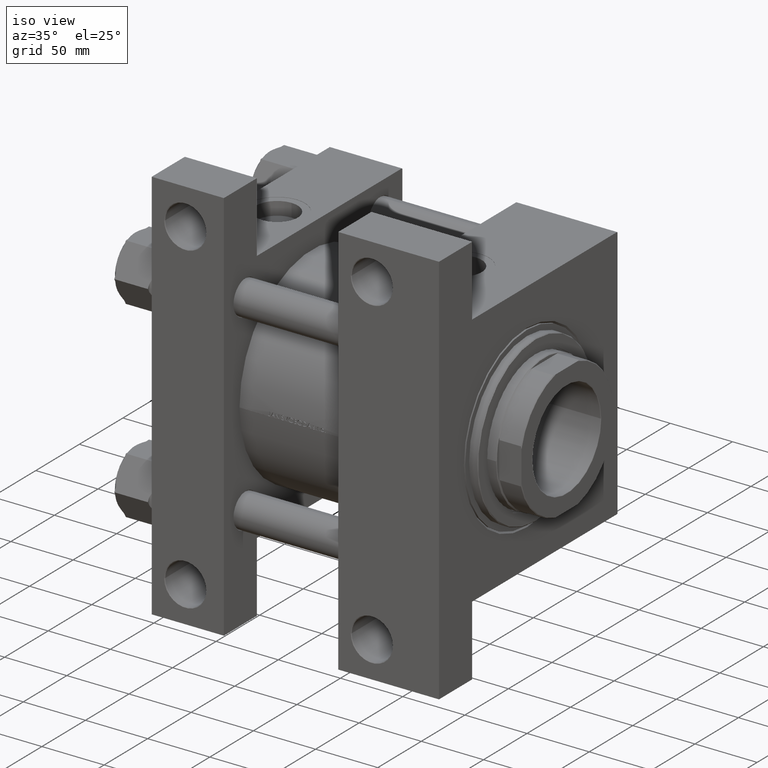
[diagram: clean part render]
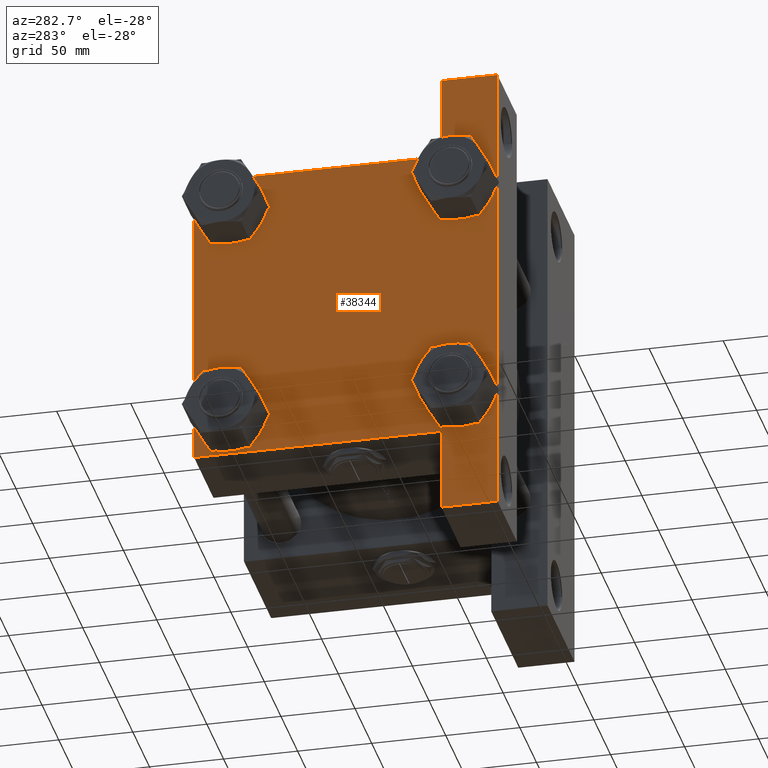
[diagram: tour spotlight — one face highlighted and labeled with its STEP entity id]
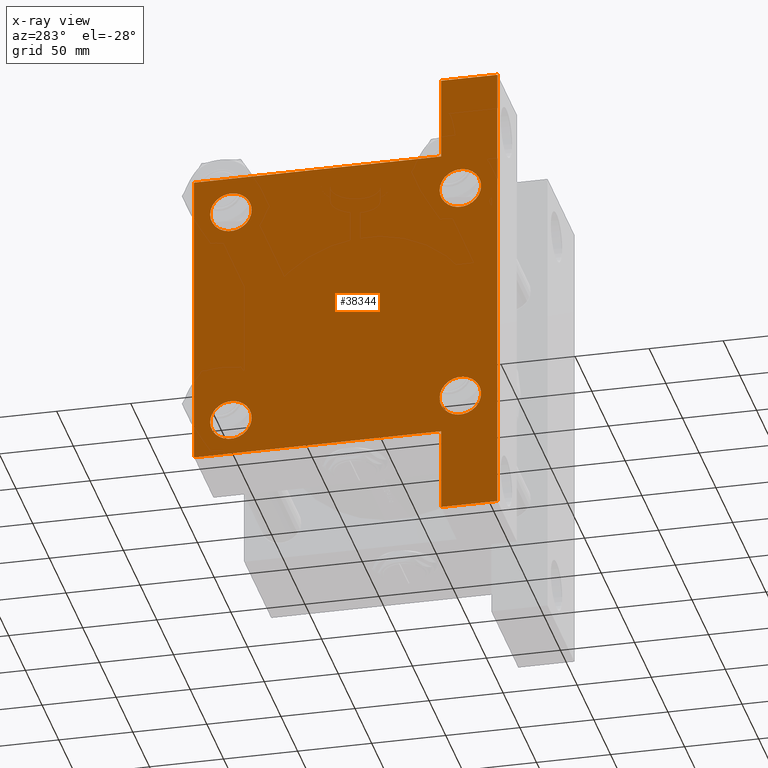
[diagram: x-ray of the same camera — body ghosted, this tour face saturated]
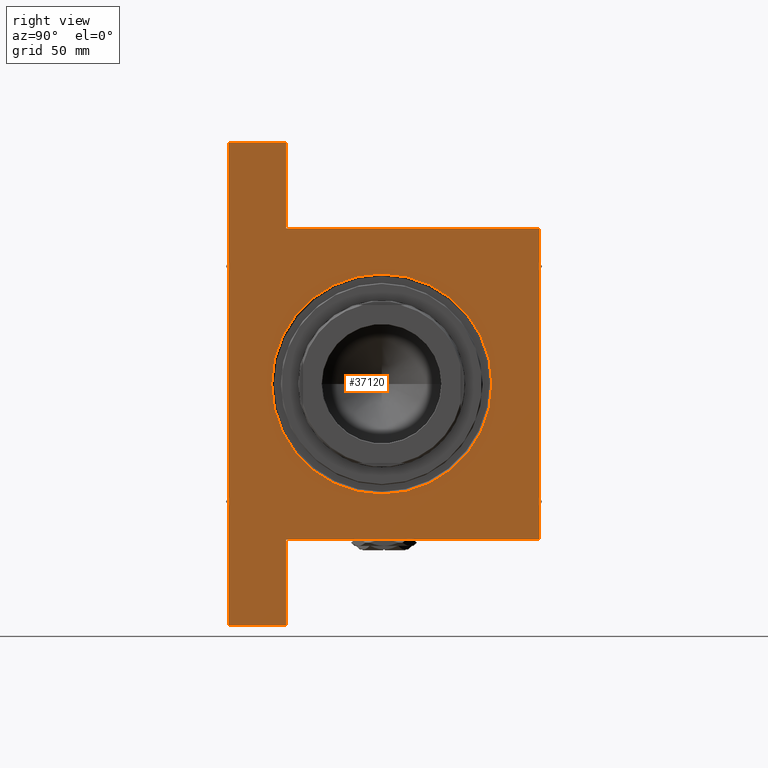
[diagram: tour spotlight — one face highlighted and labeled with its STEP entity id]
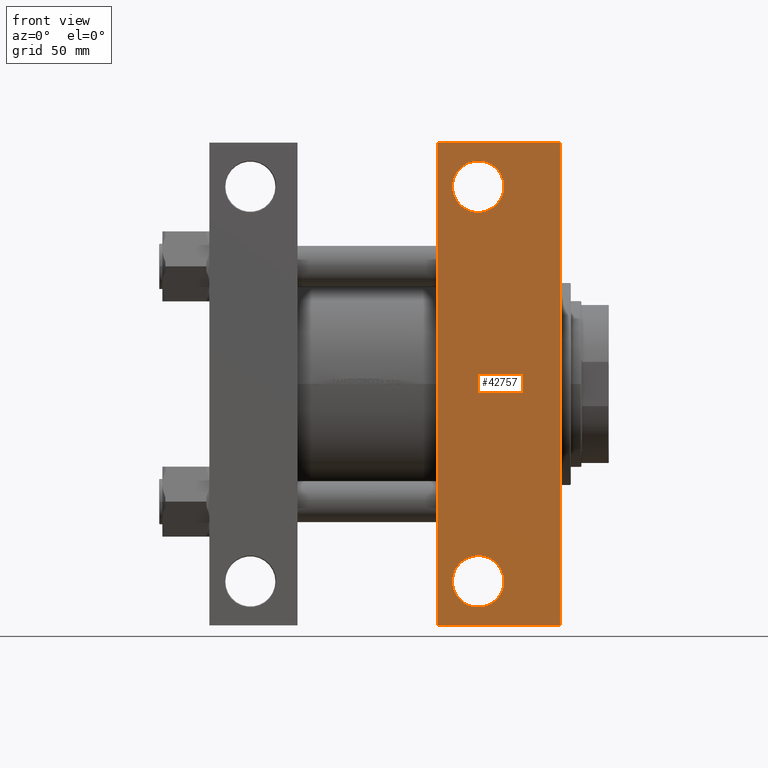
[diagram: tour spotlight — one face highlighted and labeled with its STEP entity id]
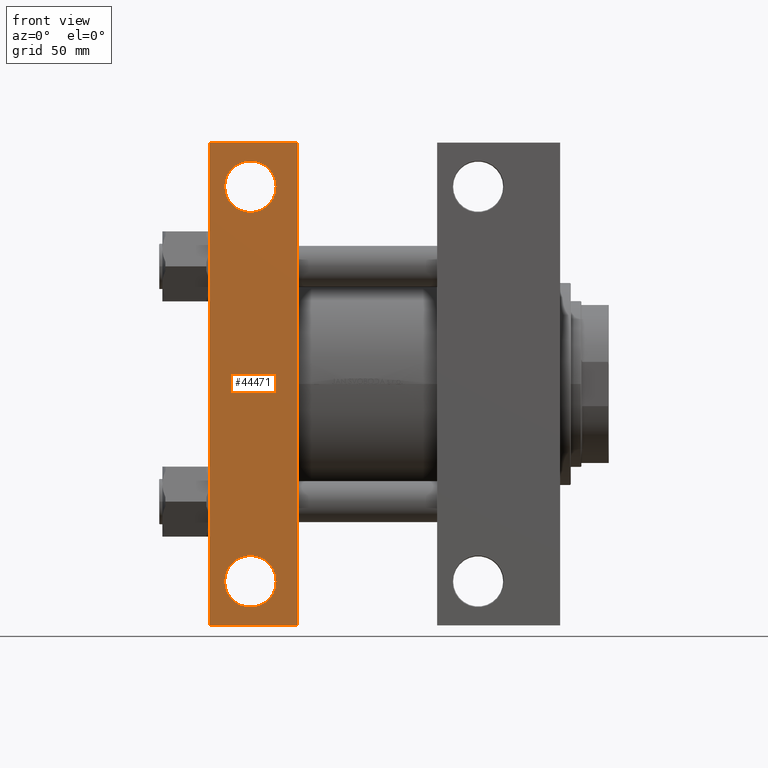
[diagram: tour spotlight — one face highlighted and labeled with its STEP entity id]
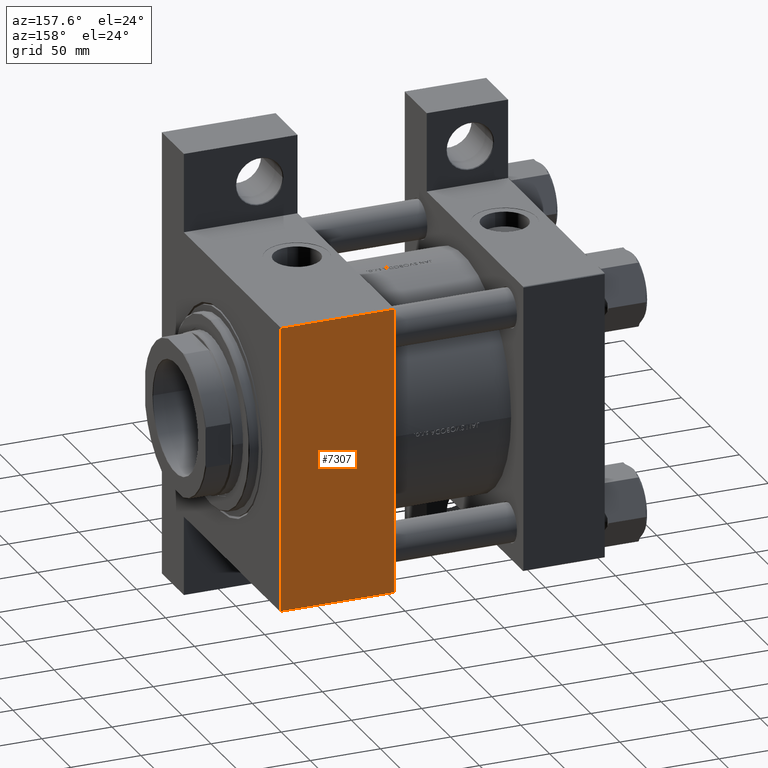
[diagram: tour spotlight — one face highlighted and labeled with its STEP entity id]
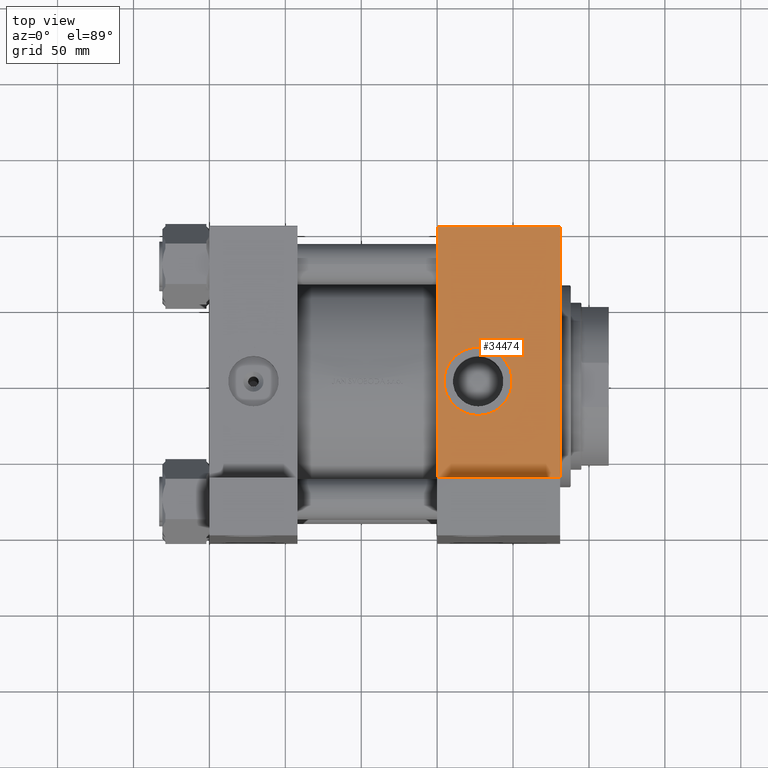
[diagram: tour spotlight — one face highlighted and labeled with its STEP entity id]
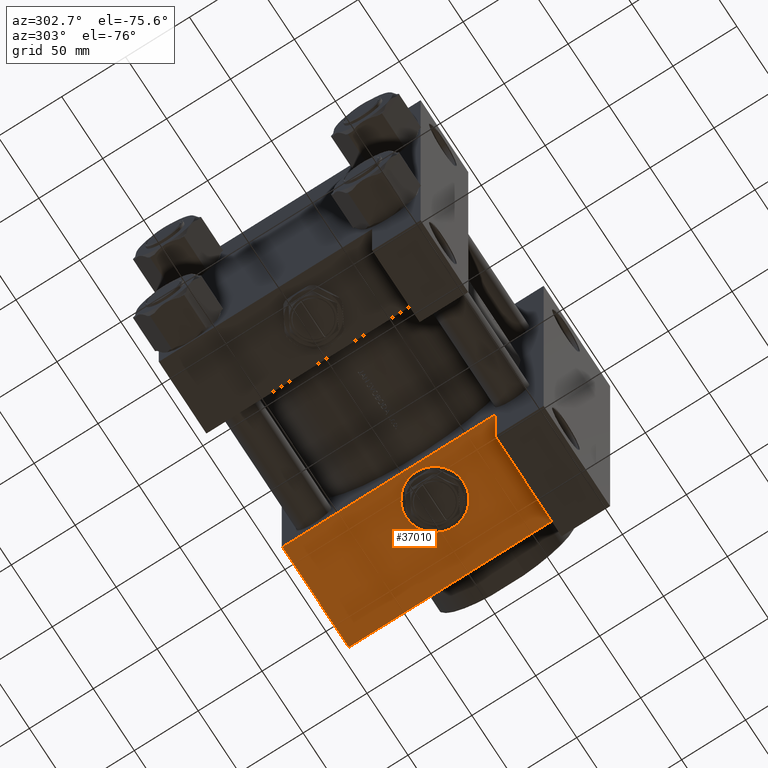
[diagram: tour spotlight — one face highlighted and labeled with its STEP entity id]
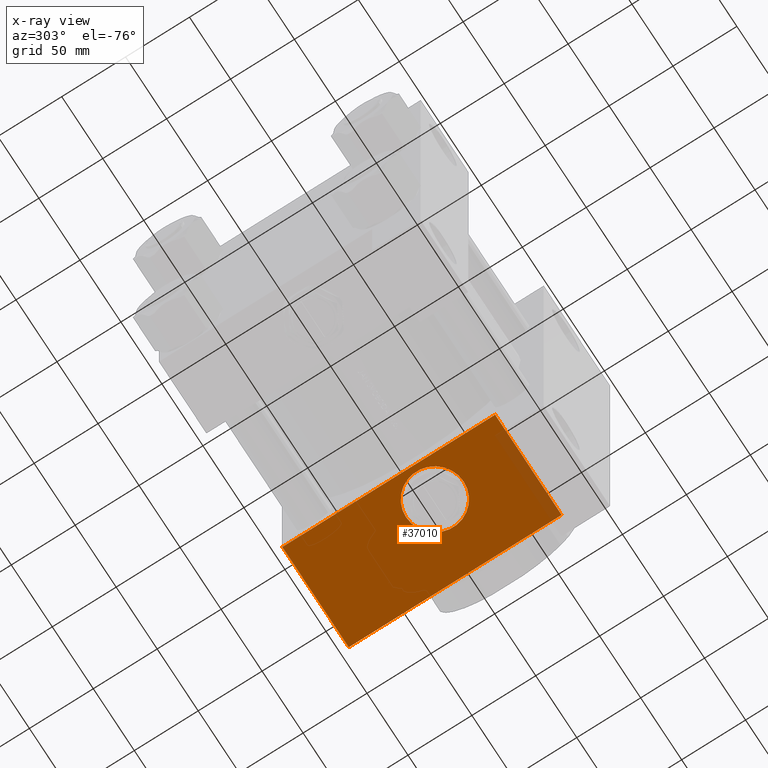
[diagram: x-ray of the same camera — body ghosted, this tour face saturated]
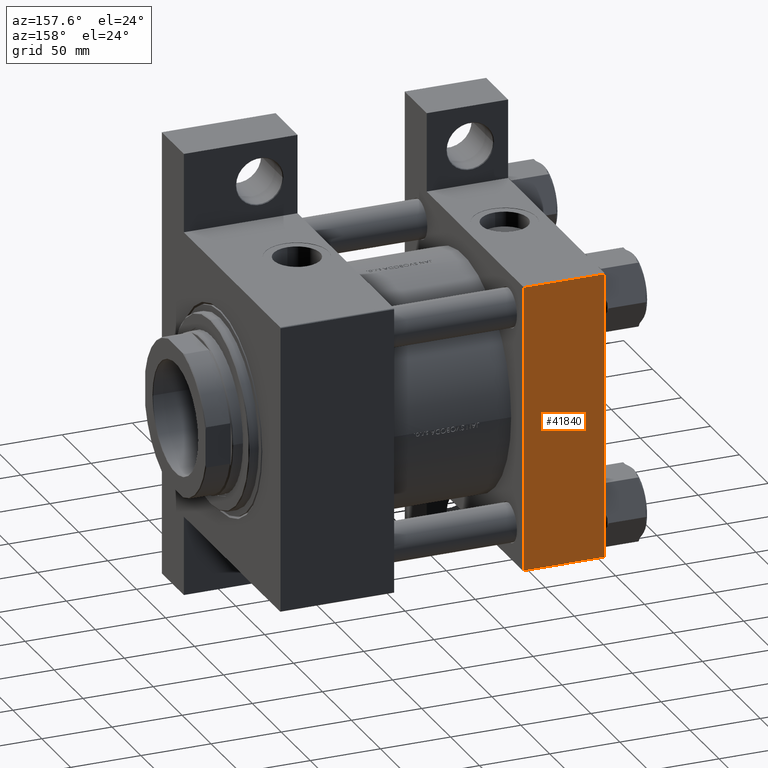
[diagram: tour spotlight — one face highlighted and labeled with its STEP entity id]
A machine part: a face-by-face anatomy tour. The part has 1231 B-rep faces; the first image is the clean iso view, then the 8 largest visible faces are spotlighted one at a time (largest first), each with its STEP entity span.

Face 1 — auxiliary view, entity #38344. An x-ray twin of the same camera follows (body ghosted, this face saturated) — the face is partly hidden behind the body. In plain terms, the highlighted planar face has unit normal (-1, 0, 0).
Definition (entity closure, byte-faithful):
#265 = CARTESIAN_POINT ( 'NONE',  ( 0.000000000000000000, -77.44999999999996021, -77.45000000000003126 ) ) ;
#733 = CARTESIAN_POINT ( 'NONE',  ( 1.265082713488378367E-15, -158.9999999999999716, -64.50000000000002842 ) ) ;
#865 = CARTESIAN_POINT ( 'NONE',  ( 0.000000000000000000, 77.44999999999998863, -77.45000000000001705 ) ) ;
#879 = FACE_BOUND ( 'NONE', #39342, .T. ) ;
#1164 = CARTESIAN_POINT ( 'NONE',  ( 0.000000000000000000, -102.4999999999999716, 102.0000000000000000 ) ) ;
#1187 = LINE ( 'NONE', #46855, #23620 ) ;
#1307 = CARTESIAN_POINT ( 'NONE',  ( 0.000000000000000000, 77.44999999999998863, 77.45000000000001705 ) ) ;
#1522 = ORIENTED_EDGE ( 'NONE', *, *, #36226, .T. ) ;
#1975 = VERTEX_POINT ( 'NONE', #23424 ) ;
#2915 = CARTESIAN_POINT ( 'NONE',  ( 0.000000000000000000, 102.2500000000000142, 102.2500000000000142 ) ) ;
#2949 = VERTEX_POINT ( 'NONE', #28718 ) ;
#3229 = CARTESIAN_POINT ( 'NONE',  ( 0.000000000000000000, -77.44999999999996021, 77.45000000000003126 ) ) ;
#3256 = EDGE_CURVE ( 'NONE', #15738, #28908, #28414, .T. ) ;
#3744 = LINE ( 'NONE', #38217, #46804 ) ;
#3937 = DIRECTION ( 'NONE',  ( 0.000000000000000000, 0.000000000000000000, 1.000000000000000000 ) ) ;
#4504 = DIRECTION ( 'NONE',  ( 0.000000000000000000, -1.000000000000000000, -1.353930517835556973E-16 ) ) ;
#6146 = CARTESIAN_POINT ( 'NONE',  ( 0.000000000000000000, 102.5000000000000284, 102.5000000000000284 ) ) ;
#6199 = AXIS2_PLACEMENT_3D ( 'NONE', #3229, #25296, #40765 ) ;
#6351 = ORIENTED_EDGE ( 'NONE', *, *, #43844, .T. ) ;
#6483 = CARTESIAN_POINT ( 'NONE',  ( 0.000000000000000000, -77.44999999999996021, 77.45000000000003126 ) ) ;
#6851 = DIRECTION ( 'NONE',  ( 1.000000000000000000, -0.000000000000000000, -0.000000000000000000 ) ) ;
#6878 = VECTOR ( 'NONE', #9912, 1000.000000000000000 ) ;
#7028 = AXIS2_PLACEMENT_3D ( 'NONE', #6483, #18386, #27269 ) ;
#7046 = AXIS2_PLACEMENT_3D ( 'NONE', #865, #24172, #39634 ) ;
#7594 = ORIENTED_EDGE ( 'NONE', *, *, #31609, .T. ) ;
#7773 = VERTEX_POINT ( 'NONE', #23662 ) ;
#7981 = FACE_OUTER_BOUND ( 'NONE', #30996, .T. ) ;
#8239 = FACE_BOUND ( 'NONE', #31839, .T. ) ;
#8254 = CARTESIAN_POINT ( 'NONE',  ( 0.000000000000000000, 77.44999999999998863, -77.45000000000001705 ) ) ;
#8981 = DIRECTION ( 'NONE',  ( 1.000000000000000000, -0.000000000000000000, -0.000000000000000000 ) ) ;
#9353 = VERTEX_POINT ( 'NONE', #17378 ) ;
#9434 = DIRECTION ( 'NONE',  ( 0.000000000000000000, 0.000000000000000000, -1.000000000000000000 ) ) ;
#9489 = CARTESIAN_POINT ( 'NONE',  ( 0.000000000000000000, 77.44999999999998863, 91.45000000000014495 ) ) ;
#9595 = CARTESIAN_POINT ( 'NONE',  ( 0.000000000000000000, 77.44999999999998863, 77.45000000000001705 ) ) ;
#9854 = DIRECTION ( 'NONE',  ( 0.000000000000000000, 0.000000000000000000, 1.000000000000000000 ) ) ;
#9912 = DIRECTION ( 'NONE',  ( 6.574117365987764099E-17, -1.000000000000000000, 0.000000000000000000 ) ) ;
#10896 = CIRCLE ( 'NONE', #13310, 14.00000000000012434 ) ;
#11215 = DIRECTION ( 'NONE',  ( 0.000000000000000000, -1.734723475976806848E-16, -1.000000000000000000 ) ) ;
#11539 = DIRECTION ( 'NONE',  ( -1.000000000000000000, 0.000000000000000000, 0.000000000000000000 ) ) ;
#12740 = VERTEX_POINT ( 'NONE', #15477 ) ;
#12838 = CARTESIAN_POINT ( 'NONE',  ( 0.000000000000000000, 102.5000000000000284, 102.5000000000000284 ) ) ;
#13310 = AXIS2_PLACEMENT_3D ( 'NONE', #1307, #40853, #13454 ) ;
#13345 = AXIS2_PLACEMENT_3D ( 'NONE', #9595, #17216, #9854 ) ;
#13418 = ORIENTED_EDGE ( 'NONE', *, *, #45495, .T. ) ;
#13454 = DIRECTION ( 'NONE',  ( 0.000000000000000000, 0.000000000000000000, 1.000000000000000000 ) ) ;
#13729 = CARTESIAN_POINT ( 'NONE',  ( 1.265082713488377381E-15, -158.9999999999999432, -64.50000000000002842 ) ) ;
#15383 = CARTESIAN_POINT ( 'NONE',  ( 0.000000000000000000, -77.44999999999996021, 91.45000000000015916 ) ) ;
#15395 = ORIENTED_EDGE ( 'NONE', *, *, #28332, .T. ) ;
#15470 = CARTESIAN_POINT ( 'NONE',  ( 0.000000000000000000, 77.44999999999998863, -91.45000000000014495 ) ) ;
#15477 = CARTESIAN_POINT ( 'NONE',  ( 0.000000000000000000, -77.44999999999996021, -91.45000000000015916 ) ) ;
#15553 = LINE ( 'NONE', #31041, #19113 ) ;
#15699 = DIRECTION ( 'NONE',  ( 1.000000000000000000, -0.000000000000000000, -0.000000000000000000 ) ) ;
#15738 = VERTEX_POINT ( 'NONE', #27306 ) ;
#15750 = VERTEX_POINT ( 'NONE', #15383 ) ;
#16639 = VECTOR ( 'NONE', #4504, 1000.000000000000000 ) ;
#16648 = LINE ( 'NONE', #12838, #16639 ) ;
#16896 = VECTOR ( 'NONE', #11215, 1000.000000000000000 ) ;
#17216 = DIRECTION ( 'NONE',  ( 1.000000000000000000, -0.000000000000000000, -0.000000000000000000 ) ) ;
#17299 = CARTESIAN_POINT ( 'NONE',  ( 4.020885092637420281E-14, 159.0000000000000284, -64.50000000000002842 ) ) ;
#17378 = CARTESIAN_POINT ( 'NONE',  ( -2.449293598294708880E-15, -102.4999999999999716, -64.50000000000002842 ) ) ;
#17529 = LINE ( 'NONE', #13729, #6878 ) ;
#18267 = VECTOR ( 'NONE', #38159, 1000.000000000000114 ) ;
#18386 = DIRECTION ( 'NONE',  ( 1.000000000000000000, -0.000000000000000000, -0.000000000000000000 ) ) ;
#18482 = VERTEX_POINT ( 'NONE', #29832 ) ;
#18621 = VECTOR ( 'NONE', #43883, 1000.000000000000000 ) ;
#18628 = LINE ( 'NONE', #2915, #18267 ) ;
#18993 = ORIENTED_EDGE ( 'NONE', *, *, #33709, .T. ) ;
#19113 = VECTOR ( 'NONE', #35094, 1000.000000000000114 ) ;
#19908 = CIRCLE ( 'NONE', #40937, 14.00000000000012434 ) ;
#20000 = VERTEX_POINT ( 'NONE', #23315 ) ;
#20555 = VECTOR ( 'NONE', #46607, 1000.000000000000000 ) ;
#20785 = VERTEX_POINT ( 'NONE', #17299 ) ;
#20888 = EDGE_LOOP ( 'NONE', ( #22069, #43088 ) ) ;
#21272 = EDGE_CURVE ( 'NONE', #20785, #25290, #1187, .T. ) ;
#22069 = ORIENTED_EDGE ( 'NONE', *, *, #41776, .T. ) ;
#22130 = VECTOR ( 'NONE', #9434, 1000.000000000000000 ) ;
#23315 = CARTESIAN_POINT ( 'NONE',  ( 0.000000000000000000, 77.44999999999998863, 63.44999999999989626 ) ) ;
#23424 = CARTESIAN_POINT ( 'NONE',  ( 0.000000000000000000, -77.44999999999996021, -63.44999999999991047 ) ) ;
#23620 = VECTOR ( 'NONE', #35433, 1000.000000000000000 ) ;
#23662 = CARTESIAN_POINT ( 'NONE',  ( 0.000000000000000000, -77.44999999999996021, 63.44999999999991047 ) ) ;
#23855 = ORIENTED_EDGE ( 'NONE', *, *, #34698, .F. ) ;
#24172 = DIRECTION ( 'NONE',  ( 1.000000000000000000, -0.000000000000000000, -0.000000000000000000 ) ) ;
#24606 = CARTESIAN_POINT ( 'NONE',  ( 0.000000000000000000, 102.5000000000000284, -102.4999999999999716 ) ) ;
#25108 = EDGE_CURVE ( 'NONE', #27308, #25290, #36333, .T. ) ;
#25290 = VERTEX_POINT ( 'NONE', #46971 ) ;
#25296 = DIRECTION ( 'NONE',  ( 1.000000000000000000, -0.000000000000000000, -0.000000000000000000 ) ) ;
#26102 = EDGE_CURVE ( 'NONE', #1975, #12740, #34346, .T. ) ;
#26306 = DIRECTION ( 'NONE',  ( 0.000000000000000000, -1.734723475976806848E-16, -1.000000000000000000 ) ) ;
#27269 = DIRECTION ( 'NONE',  ( 0.000000000000000000, 0.000000000000000000, 1.000000000000000000 ) ) ;
#27306 = CARTESIAN_POINT ( 'NONE',  ( 4.020885092637420281E-14, 159.0000000000000284, -102.5000000000000142 ) ) ;
#27308 = VERTEX_POINT ( 'NONE', #35985 ) ;
#27424 = EDGE_CURVE ( 'NONE', #43183, #9353, #42038, .T. ) ;
#28074 = CIRCLE ( 'NONE', #6199, 14.00000000000012434 ) ;
#28109 = CIRCLE ( 'NONE', #7046, 14.00000000000012434 ) ;
#28332 = EDGE_CURVE ( 'NONE', #40742, #20000, #10896, .T. ) ;
#28414 = LINE ( 'NONE', #24606, #18621 ) ;
#28501 = VERTEX_POINT ( 'NONE', #15470 ) ;
#28718 = CARTESIAN_POINT ( 'NONE',  ( 0.000000000000000000, 102.0000000000000142, 102.5000000000000284 ) ) ;
#28908 = VERTEX_POINT ( 'NONE', #47303 ) ;
#29680 = DIRECTION ( 'NONE',  ( 0.000000000000000000, 0.000000000000000000, 1.000000000000000000 ) ) ;
#29741 = CARTESIAN_POINT ( 'NONE',  ( 1.265082713488378367E-15, -158.9999999999999432, 16.47067370350829663 ) ) ;
#29832 = CARTESIAN_POINT ( 'NONE',  ( 0.000000000000000000, 77.44999999999998863, -63.44999999999989626 ) ) ;
#30049 = EDGE_CURVE ( 'NONE', #9353, #43600, #17529, .T. ) ;
#30195 = CARTESIAN_POINT ( 'NONE',  ( 0.000000000000000000, -77.44999999999996021, -77.45000000000003126 ) ) ;
#30236 = EDGE_CURVE ( 'NONE', #20000, #40742, #35238, .T. ) ;
#30769 = ORIENTED_EDGE ( 'NONE', *, *, #30049, .F. ) ;
#30996 = EDGE_LOOP ( 'NONE', ( #38830, #1522, #23855, #7594, #33541, #40830, #6351, #41069, #49705, #30769 ) ) ;
#31041 = CARTESIAN_POINT ( 'NONE',  ( 0.000000000000000000, -102.2499999999999716, 102.2499999999999716 ) ) ;
#31074 = PLANE ( 'NONE',  #47534 ) ;
#31187 = DIRECTION ( 'NONE',  ( 0.000000000000000000, 0.000000000000000000, 1.000000000000000000 ) ) ;
#31609 = EDGE_CURVE ( 'NONE', #2949, #27308, #18628, .T. ) ;
#31839 = EDGE_LOOP ( 'NONE', ( #15395, #38565 ) ) ;
#32212 = VERTEX_POINT ( 'NONE', #40842 ) ;
#32234 = CIRCLE ( 'NONE', #34720, 14.00000000000012434 ) ;
#33541 = ORIENTED_EDGE ( 'NONE', *, *, #25108, .T. ) ;
#33709 = EDGE_CURVE ( 'NONE', #7773, #15750, #36989, .T. ) ;
#34346 = CIRCLE ( 'NONE', #44019, 14.00000000000012434 ) ;
#34698 = EDGE_CURVE ( 'NONE', #2949, #32212, #16648, .T. ) ;
#34720 = AXIS2_PLACEMENT_3D ( 'NONE', #30195, #6851, #29680 ) ;
#35094 = DIRECTION ( 'NONE',  ( -0.000000000000000000, 0.7071067811865474617, 0.7071067811865474617 ) ) ;
#35097 = EDGE_CURVE ( 'NONE', #28501, #18482, #19908, .T. ) ;
#35238 = CIRCLE ( 'NONE', #13345, 14.00000000000012434 ) ;
#35433 = DIRECTION ( 'NONE',  ( -3.106705334893480606E-16, -1.000000000000000000, 0.000000000000000000 ) ) ;
#35621 = FACE_BOUND ( 'NONE', #48950, .T. ) ;
#35985 = CARTESIAN_POINT ( 'NONE',  ( 0.000000000000000000, 102.5000000000000284, 102.0000000000000142 ) ) ;
#36226 = EDGE_CURVE ( 'NONE', #43183, #32212, #15553, .T. ) ;
#36333 = LINE ( 'NONE', #6146, #22130 ) ;
#36989 = CIRCLE ( 'NONE', #7028, 14.00000000000012434 ) ;
#37590 = LINE ( 'NONE', #29741, #16896 ) ;
#38159 = DIRECTION ( 'NONE',  ( 0.000000000000000000, 0.7071067811865474617, -0.7071067811865474617 ) ) ;
#38217 = CARTESIAN_POINT ( 'NONE',  ( 4.020885092637420281E-14, 159.0000000000000568, 16.47067370350824334 ) ) ;
#38344 = ADVANCED_FACE ( 'NONE', ( #35621, #879, #42976, #8239, #7981 ), #31074, .T. ) ;
#38565 = ORIENTED_EDGE ( 'NONE', *, *, #30236, .T. ) ;
#38830 = ORIENTED_EDGE ( 'NONE', *, *, #27424, .F. ) ;
#39342 = EDGE_LOOP ( 'NONE', ( #43079, #13418 ) ) ;
#39634 = DIRECTION ( 'NONE',  ( 0.000000000000000000, 0.000000000000000000, 1.000000000000000000 ) ) ;
#40433 = EDGE_CURVE ( 'NONE', #15750, #7773, #28074, .T. ) ;
#40742 = VERTEX_POINT ( 'NONE', #9489 ) ;
#40765 = DIRECTION ( 'NONE',  ( 0.000000000000000000, 0.000000000000000000, 1.000000000000000000 ) ) ;
#40830 = ORIENTED_EDGE ( 'NONE', *, *, #21272, .F. ) ;
#40842 = CARTESIAN_POINT ( 'NONE',  ( 0.000000000000000000, -101.9999999999999147, 102.5000000000000000 ) ) ;
#40853 = DIRECTION ( 'NONE',  ( 1.000000000000000000, -0.000000000000000000, -0.000000000000000000 ) ) ;
#40937 = AXIS2_PLACEMENT_3D ( 'NONE', #8254, #8981, #43718 ) ;
#41069 = ORIENTED_EDGE ( 'NONE', *, *, #3256, .T. ) ;
#41776 = EDGE_CURVE ( 'NONE', #18482, #28501, #28109, .T. ) ;
#42038 = LINE ( 'NONE', #45850, #20555 ) ;
#42626 = ORIENTED_EDGE ( 'NONE', *, *, #40433, .T. ) ;
#42976 = FACE_BOUND ( 'NONE', #20888, .T. ) ;
#43079 = ORIENTED_EDGE ( 'NONE', *, *, #26102, .T. ) ;
#43088 = ORIENTED_EDGE ( 'NONE', *, *, #35097, .T. ) ;
#43183 = VERTEX_POINT ( 'NONE', #1164 ) ;
#43600 = VERTEX_POINT ( 'NONE', #733 ) ;
#43718 = DIRECTION ( 'NONE',  ( 0.000000000000000000, 0.000000000000000000, 1.000000000000000000 ) ) ;
#43844 = EDGE_CURVE ( 'NONE', #20785, #15738, #3744, .T. ) ;
#43883 = DIRECTION ( 'NONE',  ( 0.000000000000000000, -1.000000000000000000, -1.353930517835556727E-16 ) ) ;
#44019 = AXIS2_PLACEMENT_3D ( 'NONE', #265, #15699, #31187 ) ;
#45495 = EDGE_CURVE ( 'NONE', #12740, #1975, #32234, .T. ) ;
#45850 = CARTESIAN_POINT ( 'NONE',  ( 0.000000000000000000, -102.4999999999999716, 102.5000000000000000 ) ) ;
#46274 = EDGE_CURVE ( 'NONE', #43600, #28908, #37590, .T. ) ;
#46301 = CARTESIAN_POINT ( 'NONE',  ( 0.000000000000000000, 0.000000000000000000, 0.000000000000000000 ) ) ;
#46607 = DIRECTION ( 'NONE',  ( 0.000000000000000000, -1.353930517835556973E-16, -1.000000000000000000 ) ) ;
#46804 = VECTOR ( 'NONE', #26306, 1000.000000000000000 ) ;
#46855 = CARTESIAN_POINT ( 'NONE',  ( 4.020885092637420912E-14, 159.0000000000000568, -64.50000000000002842 ) ) ;
#46971 = CARTESIAN_POINT ( 'NONE',  ( 0.000000000000000000, 102.5000000000000284, -64.49999999999995737 ) ) ;
#47303 = CARTESIAN_POINT ( 'NONE',  ( 1.265082713488378367E-15, -158.9999999999999716, -102.4999999999999574 ) ) ;
#47534 = AXIS2_PLACEMENT_3D ( 'NONE', #46301, #11539, #3937 ) ;
#48950 = EDGE_LOOP ( 'NONE', ( #42626, #18993 ) ) ;
#49705 = ORIENTED_EDGE ( 'NONE', *, *, #46274, .F. ) ;

Face 2 — right view, entity #37120. In plain terms, the highlighted planar face has unit normal (-1, 0, 0).
Definition (entity closure, byte-faithful):
#1216 = CARTESIAN_POINT ( 'NONE',  ( 231.0000000000000568, 159.0000000000000000, -64.50000000000002842 ) ) ;
#1675 = FACE_OUTER_BOUND ( 'NONE', #34982, .T. ) ;
#2508 = DIRECTION ( 'NONE',  ( 0.000000000000000000, -1.000000000000000000, -1.353930517835556727E-16 ) ) ;
#2645 = VERTEX_POINT ( 'NONE', #9743 ) ;
#3443 = ORIENTED_EDGE ( 'NONE', *, *, #5811, .T. ) ;
#4162 = AXIS2_PLACEMENT_3D ( 'NONE', #15559, #35099, #7952 ) ;
#4191 = VECTOR ( 'NONE', #37303, 1000.000000000000000 ) ;
#4254 = EDGE_CURVE ( 'NONE', #48574, #2645, #13403, .T. ) ;
#4271 = CARTESIAN_POINT ( 'NONE',  ( 231.0000000000000568, 159.0000000000000000, -64.50000000000002842 ) ) ;
#4293 = EDGE_CURVE ( 'NONE', #34652, #48053, #7571, .T. ) ;
#4617 = CARTESIAN_POINT ( 'NONE',  ( 230.9999999999999716, 101.9999999999999005, 102.5000000000000142 ) ) ;
#5217 = ORIENTED_EDGE ( 'NONE', *, *, #12511, .F. ) ;
#5261 = DIRECTION ( 'NONE',  ( 0.000000000000000000, 0.000000000000000000, -1.000000000000000000 ) ) ;
#5811 = EDGE_CURVE ( 'NONE', #29092, #15862, #38065, .T. ) ;
#5832 = VERTEX_POINT ( 'NONE', #21364 ) ;
#5978 = CARTESIAN_POINT ( 'NONE',  ( 230.9999999999999716, 0.000000000000000000, -1.500000000000001332 ) ) ;
#6224 = CARTESIAN_POINT ( 'NONE',  ( 231.0000000000000284, -159.0000000000000000, -64.50000000000002842 ) ) ;
#6359 = LINE ( 'NONE', #17769, #4191 ) ;
#7571 = LINE ( 'NONE', #30406, #48647 ) ;
#7952 = DIRECTION ( 'NONE',  ( 0.000000000000000000, 0.000000000000000000, 1.000000000000000000 ) ) ;
#8430 = DIRECTION ( 'NONE',  ( 0.000000000000000000, 0.000000000000000000, -1.000000000000000000 ) ) ;
#8537 = LINE ( 'NONE', #38976, #11627 ) ;
#8864 = EDGE_LOOP ( 'NONE', ( #35635, #3443 ) ) ;
#8952 = CARTESIAN_POINT ( 'NONE',  ( 231.0000000000000568, 159.0000000000000000, -64.50000000000002842 ) ) ;
#9743 = CARTESIAN_POINT ( 'NONE',  ( 231.0000000000000284, -159.0000000000000000, -102.5000000000000284 ) ) ;
#9767 = DIRECTION ( 'NONE',  ( -1.000000000000000000, 0.000000000000000000, 0.000000000000000000 ) ) ;
#11627 = VECTOR ( 'NONE', #47594, 1000.000000000000114 ) ;
#11633 = LINE ( 'NONE', #34732, #25553 ) ;
#11852 = CARTESIAN_POINT ( 'NONE',  ( 230.9999999999999716, -102.5000000000000000, -64.50000000000002842 ) ) ;
#12318 = ORIENTED_EDGE ( 'NONE', *, *, #4254, .F. ) ;
#12327 = CARTESIAN_POINT ( 'NONE',  ( 230.9999999999999716, 0.000000000000000000, -74.00000000000001421 ) ) ;
#12511 = EDGE_CURVE ( 'NONE', #49803, #27919, #23656, .T. ) ;
#12605 = LINE ( 'NONE', #1216, #21470 ) ;
#13176 = VERTEX_POINT ( 'NONE', #4271 ) ;
#13403 = LINE ( 'NONE', #41051, #47025 ) ;
#15559 = CARTESIAN_POINT ( 'NONE',  ( 230.9999999999999716, 0.000000000000000000, -1.500000000000001332 ) ) ;
#15862 = VERTEX_POINT ( 'NONE', #12327 ) ;
#16016 = LINE ( 'NONE', #4617, #46333 ) ;
#17539 = AXIS2_PLACEMENT_3D ( 'NONE', #21448, #43766, #48333 ) ;
#17769 = CARTESIAN_POINT ( 'NONE',  ( 230.9999999999999716, 102.5000000000000142, 102.5000000000000142 ) ) ;
#17776 = EDGE_CURVE ( 'NONE', #5832, #47794, #6359, .T. ) ;
#18602 = ORIENTED_EDGE ( 'NONE', *, *, #21901, .T. ) ;
#20080 = DIRECTION ( 'NONE',  ( 0.000000000000000000, -0.7071067811865474617, 0.7071067811865474617 ) ) ;
#20116 = ORIENTED_EDGE ( 'NONE', *, *, #31766, .T. ) ;
#20683 = FACE_BOUND ( 'NONE', #8864, .T. ) ;
#20823 = CARTESIAN_POINT ( 'NONE',  ( 230.9999999999999716, 102.5000000000000142, 102.5000000000000142 ) ) ;
#20906 = ORIENTED_EDGE ( 'NONE', *, *, #4293, .T. ) ;
#21364 = CARTESIAN_POINT ( 'NONE',  ( 230.9999999999999716, 101.9999999999999005, 102.5000000000000142 ) ) ;
#21448 = CARTESIAN_POINT ( 'NONE',  ( 230.9999999999999716, 0.000000000000000000, 0.000000000000000000 ) ) ;
#21470 = VECTOR ( 'NONE', #5261, 1000.000000000000000 ) ;
#21542 = VECTOR ( 'NONE', #44186, 1000.000000000000000 ) ;
#21901 = EDGE_CURVE ( 'NONE', #49803, #5832, #16016, .T. ) ;
#23454 = CARTESIAN_POINT ( 'NONE',  ( 231.0000000000000568, 102.5000000000000000, -64.50000000000002842 ) ) ;
#23656 = LINE ( 'NONE', #20823, #34781 ) ;
#23779 = CARTESIAN_POINT ( 'NONE',  ( 230.9999999999999716, -102.4999999999999716, 101.9999999999999289 ) ) ;
#23781 = CARTESIAN_POINT ( 'NONE',  ( 231.0000000000000568, 159.0000000000000000, -102.5000000000000284 ) ) ;
#25258 = DIRECTION ( 'NONE',  ( 0.000000000000000000, 0.000000000000000000, 1.000000000000000000 ) ) ;
#25553 = VECTOR ( 'NONE', #27111, 1000.000000000000000 ) ;
#25747 = DIRECTION ( 'NONE',  ( -0.000000000000000000, -1.000000000000000000, -0.000000000000000000 ) ) ;
#26476 = EDGE_CURVE ( 'NONE', #47794, #34652, #8537, .T. ) ;
#26509 = LINE ( 'NONE', #6224, #33797 ) ;
#27111 = DIRECTION ( 'NONE',  ( 0.000000000000000000, 0.000000000000000000, -1.000000000000000000 ) ) ;
#27287 = AXIS2_PLACEMENT_3D ( 'NONE', #5978, #9767, #25258 ) ;
#27919 = VERTEX_POINT ( 'NONE', #23454 ) ;
#27949 = CARTESIAN_POINT ( 'NONE',  ( 230.9999999999999716, 8.878689293818310863E-15, 71.00000000000001421 ) ) ;
#28220 = ORIENTED_EDGE ( 'NONE', *, *, #42410, .T. ) ;
#28231 = ORIENTED_EDGE ( 'NONE', *, *, #17776, .T. ) ;
#28302 = PLANE ( 'NONE',  #17539 ) ;
#29092 = VERTEX_POINT ( 'NONE', #27949 ) ;
#29243 = CARTESIAN_POINT ( 'NONE',  ( 231.0000000000000284, -159.0000000000000000, -64.50000000000002842 ) ) ;
#30064 = ORIENTED_EDGE ( 'NONE', *, *, #26476, .T. ) ;
#30322 = ORIENTED_EDGE ( 'NONE', *, *, #30405, .F. ) ;
#30405 = EDGE_CURVE ( 'NONE', #13176, #48574, #12605, .T. ) ;
#30406 = CARTESIAN_POINT ( 'NONE',  ( 230.9999999999999716, -102.4999999999999716, 102.4999999999999858 ) ) ;
#31095 = EDGE_CURVE ( 'NONE', #37639, #2645, #11633, .T. ) ;
#31766 = EDGE_CURVE ( 'NONE', #13176, #27919, #35360, .T. ) ;
#33797 = VECTOR ( 'NONE', #25747, 1000.000000000000000 ) ;
#34652 = VERTEX_POINT ( 'NONE', #23779 ) ;
#34732 = CARTESIAN_POINT ( 'NONE',  ( 231.0000000000000284, -159.0000000000000000, -64.50000000000002842 ) ) ;
#34781 = VECTOR ( 'NONE', #8430, 1000.000000000000000 ) ;
#34982 = EDGE_LOOP ( 'NONE', ( #5217, #18602, #28231, #30064, #20906, #28220, #36351, #12318, #30322, #20116 ) ) ;
#35099 = DIRECTION ( 'NONE',  ( -1.000000000000000000, 0.000000000000000000, 0.000000000000000000 ) ) ;
#35360 = LINE ( 'NONE', #8952, #21542 ) ;
#35399 = CARTESIAN_POINT ( 'NONE',  ( 230.9999999999999716, 102.5000000000000142, 101.9999999999999005 ) ) ;
#35635 = ORIENTED_EDGE ( 'NONE', *, *, #42323, .T. ) ;
#36351 = ORIENTED_EDGE ( 'NONE', *, *, #31095, .T. ) ;
#37120 = ADVANCED_FACE ( 'NONE', ( #20683, #1675 ), #28302, .F. ) ;
#37303 = DIRECTION ( 'NONE',  ( 0.000000000000000000, -1.000000000000000000, -1.353930517835556973E-16 ) ) ;
#37639 = VERTEX_POINT ( 'NONE', #29243 ) ;
#37741 = DIRECTION ( 'NONE',  ( 0.000000000000000000, -1.353930517835556727E-16, -1.000000000000000000 ) ) ;
#38065 = CIRCLE ( 'NONE', #4162, 72.50000000000001421 ) ;
#38976 = CARTESIAN_POINT ( 'NONE',  ( 230.9999999999999716, -102.4999999999999716, 101.9999999999999289 ) ) ;
#41051 = CARTESIAN_POINT ( 'NONE',  ( 230.9999999999999716, 102.5000000000000142, -102.5000000000000142 ) ) ;
#42323 = EDGE_CURVE ( 'NONE', #15862, #29092, #49150, .T. ) ;
#42410 = EDGE_CURVE ( 'NONE', #48053, #37639, #26509, .T. ) ;
#43346 = CARTESIAN_POINT ( 'NONE',  ( 230.9999999999999716, -101.9999999999999005, 102.4999999999999858 ) ) ;
#43766 = DIRECTION ( 'NONE',  ( -1.000000000000000000, 0.000000000000000000, 0.000000000000000000 ) ) ;
#44186 = DIRECTION ( 'NONE',  ( 0.000000000000000000, -1.000000000000000000, 0.000000000000000000 ) ) ;
#46333 = VECTOR ( 'NONE', #20080, 1000.000000000000114 ) ;
#47025 = VECTOR ( 'NONE', #2508, 1000.000000000000000 ) ;
#47594 = DIRECTION ( 'NONE',  ( -0.000000000000000000, -0.7071067811865573427, -0.7071067811865376918 ) ) ;
#47794 = VERTEX_POINT ( 'NONE', #43346 ) ;
#48053 = VERTEX_POINT ( 'NONE', #11852 ) ;
#48333 = DIRECTION ( 'NONE',  ( 0.000000000000000000, 0.000000000000000000, 1.000000000000000000 ) ) ;
#48574 = VERTEX_POINT ( 'NONE', #23781 ) ;
#48647 = VECTOR ( 'NONE', #37741, 1000.000000000000000 ) ;
#49150 = CIRCLE ( 'NONE', #27287, 72.50000000000001421 ) ;
#49803 = VERTEX_POINT ( 'NONE', #35399 ) ;

Face 3 — front view, entity #42757. In plain terms, the highlighted planar face has unit normal (0, -1, -0).
Definition (entity closure, byte-faithful):
#172 = LINE ( 'NONE', #43486, #27535 ) ;
#1133 = AXIS2_PLACEMENT_3D ( 'NONE', #29744, #15463, #42598 ) ;
#1244 = CARTESIAN_POINT ( 'NONE',  ( 176.9999999999999716, 130.0000000000000000, -102.5000000000000142 ) ) ;
#1919 = ORIENTED_EDGE ( 'NONE', *, *, #4254, .T. ) ;
#1990 = DIRECTION ( 'NONE',  ( -1.000000000000000000, 3.426614273534433207E-16, -0.000000000000000000 ) ) ;
#2508 = DIRECTION ( 'NONE',  ( 0.000000000000000000, -1.000000000000000000, -1.353930517835556727E-16 ) ) ;
#2645 = VERTEX_POINT ( 'NONE', #9743 ) ;
#2862 = CARTESIAN_POINT ( 'NONE',  ( 193.9995000000000118, 130.0000000000000000, -102.5000000000000142 ) ) ;
#4254 = EDGE_CURVE ( 'NONE', #48574, #2645, #13403, .T. ) ;
#4454 = ORIENTED_EDGE ( 'NONE', *, *, #9883, .T. ) ;
#4466 = VERTEX_POINT ( 'NONE', #24270 ) ;
#5083 = EDGE_LOOP ( 'NONE', ( #11064, #39886, #1919, #26246 ) ) ;
#5437 = AXIS2_PLACEMENT_3D ( 'NONE', #27198, #42664, #15767 ) ;
#6871 = CARTESIAN_POINT ( 'NONE',  ( 160.0004999999999882, -130.0000000000000000, -102.5000000000000284 ) ) ;
#7671 = FACE_BOUND ( 'NONE', #24340, .T. ) ;
#8069 = VERTEX_POINT ( 'NONE', #6871 ) ;
#8553 = ORIENTED_EDGE ( 'NONE', *, *, #32268, .T. ) ;
#9572 = CARTESIAN_POINT ( 'NONE',  ( 150.0000000000000284, -158.9999999999999716, -102.5000000000000284 ) ) ;
#9743 = CARTESIAN_POINT ( 'NONE',  ( 231.0000000000000284, -159.0000000000000000, -102.5000000000000284 ) ) ;
#9883 = EDGE_CURVE ( 'NONE', #4466, #47403, #48747, .T. ) ;
#11064 = ORIENTED_EDGE ( 'NONE', *, *, #14336, .F. ) ;
#11071 = VECTOR ( 'NONE', #1990, 1000.000000000000000 ) ;
#13403 = LINE ( 'NONE', #41051, #47025 ) ;
#14024 = FACE_BOUND ( 'NONE', #42187, .T. ) ;
#14336 = EDGE_CURVE ( 'NONE', #18367, #34131, #172, .T. ) ;
#15463 = DIRECTION ( 'NONE',  ( -0.000000000000000000, -1.353930517835556727E-16, 1.000000000000000000 ) ) ;
#15767 = DIRECTION ( 'NONE',  ( 0.000000000000000000, 1.000000000000000000, 1.353930517835556727E-16 ) ) ;
#16375 = VECTOR ( 'NONE', #29390, 1000.000000000000000 ) ;
#16694 = DIRECTION ( 'NONE',  ( -0.000000000000000000, -1.353930517835556727E-16, 1.000000000000000000 ) ) ;
#16704 = CIRCLE ( 'NONE', #19985, 16.99950000000005446 ) ;
#18367 = VERTEX_POINT ( 'NONE', #28084 ) ;
#18764 = DIRECTION ( 'NONE',  ( -0.000000000000000000, -1.353930517835556727E-16, 1.000000000000000000 ) ) ;
#19679 = DIRECTION ( 'NONE',  ( 0.000000000000000000, -1.000000000000000000, -1.353930517835556727E-16 ) ) ;
#19814 = EDGE_CURVE ( 'NONE', #18367, #48574, #32686, .T. ) ;
#19985 = AXIS2_PLACEMENT_3D ( 'NONE', #24986, #47592, #48083 ) ;
#20189 = ORIENTED_EDGE ( 'NONE', *, *, #27139, .T. ) ;
#21113 = CARTESIAN_POINT ( 'NONE',  ( 193.9994999999999834, -130.0000000000000000, -102.5000000000000284 ) ) ;
#21764 = LINE ( 'NONE', #9572, #11071 ) ;
#23141 = AXIS2_PLACEMENT_3D ( 'NONE', #42095, #18764, #30191 ) ;
#23389 = PLANE ( 'NONE',  #5437 ) ;
#23781 = CARTESIAN_POINT ( 'NONE',  ( 231.0000000000000568, 159.0000000000000000, -102.5000000000000284 ) ) ;
#24210 = VERTEX_POINT ( 'NONE', #21113 ) ;
#24270 = CARTESIAN_POINT ( 'NONE',  ( 160.0004999999999029, 130.0000000000000000, -102.5000000000000142 ) ) ;
#24340 = EDGE_LOOP ( 'NONE', ( #20189, #8553 ) ) ;
#24986 = CARTESIAN_POINT ( 'NONE',  ( 176.9999999999999716, 130.0000000000000000, -102.5000000000000142 ) ) ;
#25071 = CARTESIAN_POINT ( 'NONE',  ( 150.0000000000000284, -158.9999999999999716, -102.5000000000000284 ) ) ;
#26246 = ORIENTED_EDGE ( 'NONE', *, *, #37944, .T. ) ;
#27139 = EDGE_CURVE ( 'NONE', #8069, #24210, #35960, .T. ) ;
#27198 = CARTESIAN_POINT ( 'NONE',  ( 230.9999999999999716, 102.5000000000000142, -102.5000000000000142 ) ) ;
#27535 = VECTOR ( 'NONE', #19679, 1000.000000000000000 ) ;
#28084 = CARTESIAN_POINT ( 'NONE',  ( 150.0000000000000568, 159.0000000000000284, -102.5000000000000284 ) ) ;
#29390 = DIRECTION ( 'NONE',  ( 1.000000000000000000, -3.426614273534433207E-16, 0.000000000000000000 ) ) ;
#29744 = CARTESIAN_POINT ( 'NONE',  ( 177.0000000000000000, -130.0000000000000000, -102.5000000000000284 ) ) ;
#30191 = DIRECTION ( 'NONE',  ( 0.000000000000000000, 1.000000000000000000, 0.000000000000000000 ) ) ;
#32268 = EDGE_CURVE ( 'NONE', #24210, #8069, #44996, .T. ) ;
#32686 = LINE ( 'NONE', #37233, #16375 ) ;
#34131 = VERTEX_POINT ( 'NONE', #25071 ) ;
#35960 = CIRCLE ( 'NONE', #1133, 16.99950000000000117 ) ;
#36149 = ORIENTED_EDGE ( 'NONE', *, *, #37131, .T. ) ;
#37131 = EDGE_CURVE ( 'NONE', #47403, #4466, #16704, .T. ) ;
#37233 = CARTESIAN_POINT ( 'NONE',  ( 150.0000000000000568, 159.0000000000000284, -102.5000000000000284 ) ) ;
#37944 = EDGE_CURVE ( 'NONE', #2645, #34131, #21764, .T. ) ;
#39886 = ORIENTED_EDGE ( 'NONE', *, *, #19814, .T. ) ;
#41051 = CARTESIAN_POINT ( 'NONE',  ( 230.9999999999999716, 102.5000000000000142, -102.5000000000000142 ) ) ;
#42095 = CARTESIAN_POINT ( 'NONE',  ( 177.0000000000000000, -130.0000000000000000, -102.5000000000000284 ) ) ;
#42187 = EDGE_LOOP ( 'NONE', ( #4454, #36149 ) ) ;
#42598 = DIRECTION ( 'NONE',  ( 0.000000000000000000, 1.000000000000000000, 0.000000000000000000 ) ) ;
#42664 = DIRECTION ( 'NONE',  ( 0.000000000000000000, 1.353930517835556727E-16, -1.000000000000000000 ) ) ;
#42757 = ADVANCED_FACE ( 'NONE', ( #14024, #7671, #45978 ), #23389, .T. ) ;
#43486 = CARTESIAN_POINT ( 'NONE',  ( 150.0000000000000000, 102.5000000000000142, -102.5000000000000142 ) ) ;
#43833 = DIRECTION ( 'NONE',  ( 0.000000000000000000, 1.000000000000000000, 0.000000000000000000 ) ) ;
#43849 = AXIS2_PLACEMENT_3D ( 'NONE', #1244, #16694, #43833 ) ;
#44996 = CIRCLE ( 'NONE', #23141, 16.99950000000000117 ) ;
#45978 = FACE_OUTER_BOUND ( 'NONE', #5083, .T. ) ;
#47025 = VECTOR ( 'NONE', #2508, 1000.000000000000000 ) ;
#47403 = VERTEX_POINT ( 'NONE', #2862 ) ;
#47592 = DIRECTION ( 'NONE',  ( -0.000000000000000000, -1.353930517835556727E-16, 1.000000000000000000 ) ) ;
#48083 = DIRECTION ( 'NONE',  ( 0.000000000000000000, 1.000000000000000000, 0.000000000000000000 ) ) ;
#48574 = VERTEX_POINT ( 'NONE', #23781 ) ;
#48747 = CIRCLE ( 'NONE', #43849, 16.99950000000005446 ) ;

Face 4 — front view, entity #44471. In plain terms, the highlighted planar face has unit normal (0, -1, -0).
Definition (entity closure, byte-faithful):
#2252 = CARTESIAN_POINT ( 'NONE',  ( 26.99999999999999289, -130.0000000000000284, -102.5000000000000000 ) ) ;
#3148 = DIRECTION ( 'NONE',  ( 1.000000000000000000, 0.000000000000000000, 0.000000000000000000 ) ) ;
#3256 = EDGE_CURVE ( 'NONE', #15738, #28908, #28414, .T. ) ;
#6315 = VERTEX_POINT ( 'NONE', #35193 ) ;
#7092 = ORIENTED_EDGE ( 'NONE', *, *, #49982, .T. ) ;
#7912 = FACE_BOUND ( 'NONE', #44575, .T. ) ;
#7950 = DIRECTION ( 'NONE',  ( -0.000000000000000000, -1.353930517835556973E-16, 1.000000000000000000 ) ) ;
#9166 = EDGE_CURVE ( 'NONE', #21874, #28908, #35492, .T. ) ;
#10253 = VECTOR ( 'NONE', #21645, 1000.000000000000000 ) ;
#11237 = ORIENTED_EDGE ( 'NONE', *, *, #24933, .T. ) ;
#11653 = EDGE_CURVE ( 'NONE', #39944, #44872, #29879, .T. ) ;
#11957 = CARTESIAN_POINT ( 'NONE',  ( 58.00000000000000000, 102.5000000000000284, -102.4999999999999716 ) ) ;
#12989 = AXIS2_PLACEMENT_3D ( 'NONE', #22676, #7950, #22940 ) ;
#13062 = CIRCLE ( 'NONE', #43067, 16.99949999999981998 ) ;
#15236 = ORIENTED_EDGE ( 'NONE', *, *, #11653, .T. ) ;
#15738 = VERTEX_POINT ( 'NONE', #27306 ) ;
#17184 = DIRECTION ( 'NONE',  ( 0.000000000000000000, 1.000000000000000000, 1.353930517835556973E-16 ) ) ;
#18099 = EDGE_CURVE ( 'NONE', #33655, #23617, #13062, .T. ) ;
#18621 = VECTOR ( 'NONE', #43883, 1000.000000000000000 ) ;
#19067 = ORIENTED_EDGE ( 'NONE', *, *, #9166, .T. ) ;
#19112 = LINE ( 'NONE', #27223, #23553 ) ;
#19320 = DIRECTION ( 'NONE',  ( 0.000000000000000000, 1.353930517835556973E-16, -1.000000000000000000 ) ) ;
#19350 = AXIS2_PLACEMENT_3D ( 'NONE', #24880, #40339, #21082 ) ;
#19828 = PLANE ( 'NONE',  #36281 ) ;
#21082 = DIRECTION ( 'NONE',  ( 0.000000000000000000, 1.000000000000000000, 0.000000000000000000 ) ) ;
#21295 = AXIS2_PLACEMENT_3D ( 'NONE', #30381, #29612, #26313 ) ;
#21645 = DIRECTION ( 'NONE',  ( 0.000000000000000000, -1.000000000000000000, -1.353930517835556727E-16 ) ) ;
#21874 = VERTEX_POINT ( 'NONE', #39336 ) ;
#22676 = CARTESIAN_POINT ( 'NONE',  ( 26.99999999999999289, 129.9999999999999716, -102.4999999999999716 ) ) ;
#22940 = DIRECTION ( 'NONE',  ( 0.000000000000000000, 1.000000000000000000, 0.000000000000000000 ) ) ;
#23553 = VECTOR ( 'NONE', #3148, 1000.000000000000000 ) ;
#23617 = VERTEX_POINT ( 'NONE', #27417 ) ;
#24388 = CARTESIAN_POINT ( 'NONE',  ( 10.00049999999992245, 129.9999999999999716, -102.4999999999999716 ) ) ;
#24606 = CARTESIAN_POINT ( 'NONE',  ( 0.000000000000000000, 102.5000000000000284, -102.4999999999999716 ) ) ;
#24678 = CARTESIAN_POINT ( 'NONE',  ( 58.00000000000000000, 102.5000000000000284, -102.4999999999999716 ) ) ;
#24880 = CARTESIAN_POINT ( 'NONE',  ( 26.99999999999999289, 129.9999999999999716, -102.4999999999999716 ) ) ;
#24933 = EDGE_CURVE ( 'NONE', #23617, #33655, #48814, .T. ) ;
#25333 = DIRECTION ( 'NONE',  ( -0.000000000000000000, -1.353930517835556973E-16, 1.000000000000000000 ) ) ;
#26313 = DIRECTION ( 'NONE',  ( 0.000000000000000000, 1.000000000000000000, 0.000000000000000000 ) ) ;
#27223 = CARTESIAN_POINT ( 'NONE',  ( 4.020885092637420281E-14, 159.0000000000000284, -102.5000000000000142 ) ) ;
#27306 = CARTESIAN_POINT ( 'NONE',  ( 4.020885092637420281E-14, 159.0000000000000284, -102.5000000000000142 ) ) ;
#27417 = CARTESIAN_POINT ( 'NONE',  ( 10.00050000000017292, -130.0000000000000284, -102.5000000000000000 ) ) ;
#28414 = LINE ( 'NONE', #24606, #18621 ) ;
#28859 = FACE_OUTER_BOUND ( 'NONE', #38971, .T. ) ;
#28908 = VERTEX_POINT ( 'NONE', #47303 ) ;
#29552 = CARTESIAN_POINT ( 'NONE',  ( 43.99950000000006867, 129.9999999999999716, -102.4999999999999716 ) ) ;
#29612 = DIRECTION ( 'NONE',  ( -0.000000000000000000, -1.353930517835556973E-16, 1.000000000000000000 ) ) ;
#29879 = CIRCLE ( 'NONE', #19350, 16.99950000000005446 ) ;
#30283 = ORIENTED_EDGE ( 'NONE', *, *, #49975, .T. ) ;
#30381 = CARTESIAN_POINT ( 'NONE',  ( 26.99999999999999289, -130.0000000000000284, -102.5000000000000000 ) ) ;
#33193 = DIRECTION ( 'NONE',  ( 0.000000000000000000, 1.000000000000000000, 0.000000000000000000 ) ) ;
#33627 = CARTESIAN_POINT ( 'NONE',  ( 43.99949999999981998, -130.0000000000000284, -102.5000000000000000 ) ) ;
#33655 = VERTEX_POINT ( 'NONE', #33627 ) ;
#35193 = CARTESIAN_POINT ( 'NONE',  ( 58.00000000000004263, 159.0000000000000284, -102.5000000000000142 ) ) ;
#35492 = LINE ( 'NONE', #39781, #43031 ) ;
#36281 = AXIS2_PLACEMENT_3D ( 'NONE', #11957, #19320, #17184 ) ;
#36470 = FACE_BOUND ( 'NONE', #48936, .T. ) ;
#38508 = EDGE_CURVE ( 'NONE', #6315, #21874, #43962, .T. ) ;
#38971 = EDGE_LOOP ( 'NONE', ( #46672, #30283, #41615, #19067 ) ) ;
#39336 = CARTESIAN_POINT ( 'NONE',  ( 58.00000000000000000, -158.9999999999999716, -102.4999999999999574 ) ) ;
#39781 = CARTESIAN_POINT ( 'NONE',  ( 1.265082713488378367E-15, -158.9999999999999716, -102.4999999999999574 ) ) ;
#39944 = VERTEX_POINT ( 'NONE', #24388 ) ;
#40339 = DIRECTION ( 'NONE',  ( -0.000000000000000000, -1.353930517835556973E-16, 1.000000000000000000 ) ) ;
#41615 = ORIENTED_EDGE ( 'NONE', *, *, #38508, .T. ) ;
#43031 = VECTOR ( 'NONE', #43343, 1000.000000000000000 ) ;
#43067 = AXIS2_PLACEMENT_3D ( 'NONE', #2252, #25333, #33193 ) ;
#43343 = DIRECTION ( 'NONE',  ( -1.000000000000000000, -0.000000000000000000, -0.000000000000000000 ) ) ;
#43883 = DIRECTION ( 'NONE',  ( 0.000000000000000000, -1.000000000000000000, -1.353930517835556727E-16 ) ) ;
#43962 = LINE ( 'NONE', #24678, #10253 ) ;
#44471 = ADVANCED_FACE ( 'NONE', ( #36470, #7912, #28859 ), #19828, .T. ) ;
#44575 = EDGE_LOOP ( 'NONE', ( #11237, #48182 ) ) ;
#44872 = VERTEX_POINT ( 'NONE', #29552 ) ;
#46672 = ORIENTED_EDGE ( 'NONE', *, *, #3256, .F. ) ;
#47020 = CIRCLE ( 'NONE', #12989, 16.99950000000005446 ) ;
#47303 = CARTESIAN_POINT ( 'NONE',  ( 1.265082713488378367E-15, -158.9999999999999716, -102.4999999999999574 ) ) ;
#48182 = ORIENTED_EDGE ( 'NONE', *, *, #18099, .T. ) ;
#48814 = CIRCLE ( 'NONE', #21295, 16.99949999999981998 ) ;
#48936 = EDGE_LOOP ( 'NONE', ( #15236, #7092 ) ) ;
#49975 = EDGE_CURVE ( 'NONE', #15738, #6315, #19112, .T. ) ;
#49982 = EDGE_CURVE ( 'NONE', #44872, #39944, #47020, .T. ) ;

Face 5 — auxiliary view, entity #7307. In plain terms, the highlighted planar face has unit normal (0, -1, -0).
Definition (entity closure, byte-faithful):
#482 = VECTOR ( 'NONE', #19970, 1000.000000000000000 ) ;
#4092 = CARTESIAN_POINT ( 'NONE',  ( 150.0000000000000000, 101.9999999999999005, 102.5000000000000142 ) ) ;
#4191 = VECTOR ( 'NONE', #37303, 1000.000000000000000 ) ;
#5314 = VECTOR ( 'NONE', #45395, 1000.000000000000000 ) ;
#5832 = VERTEX_POINT ( 'NONE', #21364 ) ;
#5875 = EDGE_CURVE ( 'NONE', #5832, #50136, #36580, .T. ) ;
#6130 = DIRECTION ( 'NONE',  ( -1.000000000000000000, 0.000000000000000000, 0.000000000000000000 ) ) ;
#6359 = LINE ( 'NONE', #17769, #4191 ) ;
#7307 = ADVANCED_FACE ( 'NONE', ( #39051 ), #23090, .F. ) ;
#10644 = LINE ( 'NONE', #21569, #5314 ) ;
#10806 = ORIENTED_EDGE ( 'NONE', *, *, #34640, .T. ) ;
#15310 = VERTEX_POINT ( 'NONE', #31974 ) ;
#17430 = EDGE_LOOP ( 'NONE', ( #42631, #50011, #24729, #10806 ) ) ;
#17769 = CARTESIAN_POINT ( 'NONE',  ( 230.9999999999999716, 102.5000000000000142, 102.5000000000000142 ) ) ;
#17776 = EDGE_CURVE ( 'NONE', #5832, #47794, #6359, .T. ) ;
#19970 = DIRECTION ( 'NONE',  ( 1.000000000000000000, 0.000000000000000000, 0.000000000000000000 ) ) ;
#20270 = CARTESIAN_POINT ( 'NONE',  ( 230.9999999999999716, 102.5000000000000142, 102.5000000000000142 ) ) ;
#21364 = CARTESIAN_POINT ( 'NONE',  ( 230.9999999999999716, 101.9999999999999005, 102.5000000000000142 ) ) ;
#21569 = CARTESIAN_POINT ( 'NONE',  ( 150.0000000000000000, 102.5000000000000142, 102.5000000000000142 ) ) ;
#23090 = PLANE ( 'NONE',  #44577 ) ;
#24729 = ORIENTED_EDGE ( 'NONE', *, *, #32162, .T. ) ;
#31974 = CARTESIAN_POINT ( 'NONE',  ( 150.0000000000000000, -101.9999999999999005, 102.4999999999999858 ) ) ;
#32162 = EDGE_CURVE ( 'NONE', #50136, #15310, #10644, .T. ) ;
#32487 = VECTOR ( 'NONE', #6130, 1000.000000000000000 ) ;
#34640 = EDGE_CURVE ( 'NONE', #15310, #47794, #47368, .T. ) ;
#36426 = DIRECTION ( 'NONE',  ( 0.000000000000000000, 1.000000000000000000, 1.353930517835556973E-16 ) ) ;
#36580 = LINE ( 'NONE', #48494, #32487 ) ;
#37303 = DIRECTION ( 'NONE',  ( 0.000000000000000000, -1.000000000000000000, -1.353930517835556973E-16 ) ) ;
#39051 = FACE_OUTER_BOUND ( 'NONE', #17430, .T. ) ;
#42631 = ORIENTED_EDGE ( 'NONE', *, *, #17776, .F. ) ;
#43295 = CARTESIAN_POINT ( 'NONE',  ( 230.9999999999999716, -101.9999999999999005, 102.4999999999999858 ) ) ;
#43346 = CARTESIAN_POINT ( 'NONE',  ( 230.9999999999999716, -101.9999999999999005, 102.4999999999999858 ) ) ;
#44577 = AXIS2_PLACEMENT_3D ( 'NONE', #20270, #46922, #36426 ) ;
#45395 = DIRECTION ( 'NONE',  ( 0.000000000000000000, -1.000000000000000000, -1.353930517835556973E-16 ) ) ;
#46922 = DIRECTION ( 'NONE',  ( 0.000000000000000000, 1.353930517835556973E-16, -1.000000000000000000 ) ) ;
#47368 = LINE ( 'NONE', #43295, #482 ) ;
#47794 = VERTEX_POINT ( 'NONE', #43346 ) ;
#48494 = CARTESIAN_POINT ( 'NONE',  ( 150.0000000000000000, 101.9999999999999005, 102.5000000000000142 ) ) ;
#50011 = ORIENTED_EDGE ( 'NONE', *, *, #5875, .T. ) ;
#50136 = VERTEX_POINT ( 'NONE', #4092 ) ;

Face 6 — top view, entity #34474. In plain terms, the highlighted planar face has unit normal (0, -0, -1).
Definition (entity closure, byte-faithful):
#1947 = ORIENTED_EDGE ( 'NONE', *, *, #10672, .F. ) ;
#2498 = DIRECTION ( 'NONE',  ( 0.000000000000000000, 1.353930517835556727E-16, 1.000000000000000000 ) ) ;
#2727 = DIRECTION ( 'NONE',  ( 0.000000000000000000, -1.000000000000000000, -8.673617379884036705E-17 ) ) ;
#3756 = LINE ( 'NONE', #19210, #8411 ) ;
#4293 = EDGE_CURVE ( 'NONE', #34652, #48053, #7571, .T. ) ;
#6128 = ORIENTED_EDGE ( 'NONE', *, *, #43764, .F. ) ;
#6867 = LINE ( 'NONE', #46179, #23862 ) ;
#7571 = LINE ( 'NONE', #30406, #48647 ) ;
#8411 = VECTOR ( 'NONE', #29865, 1000.000000000000000 ) ;
#10056 = EDGE_LOOP ( 'NONE', ( #33525, #37746, #19739, #27005 ) ) ;
#10260 = AXIS2_PLACEMENT_3D ( 'NONE', #30146, #41043, #2498 ) ;
#10672 = EDGE_CURVE ( 'NONE', #14502, #14863, #40627, .T. ) ;
#11160 = CIRCLE ( 'NONE', #49216, 22.49999999999998224 ) ;
#11170 = DIRECTION ( 'NONE',  ( 1.000000000000000000, -3.426614273534431728E-16, 0.000000000000000000 ) ) ;
#11852 = CARTESIAN_POINT ( 'NONE',  ( 230.9999999999999716, -102.5000000000000000, -64.50000000000002842 ) ) ;
#13709 = DIRECTION ( 'NONE',  ( 0.000000000000000000, -1.000000000000000000, -8.673617379884036705E-17 ) ) ;
#14502 = VERTEX_POINT ( 'NONE', #41441 ) ;
#14658 = PLANE ( 'NONE',  #10260 ) ;
#14863 = VERTEX_POINT ( 'NONE', #45242 ) ;
#17964 = AXIS2_PLACEMENT_3D ( 'NONE', #24870, #13709, #40330 ) ;
#18047 = VERTEX_POINT ( 'NONE', #41561 ) ;
#18179 = DIRECTION ( 'NONE',  ( 0.000000000000000000, 0.000000000000000000, -1.000000000000000000 ) ) ;
#18999 = EDGE_LOOP ( 'NONE', ( #6128, #1947 ) ) ;
#19210 = CARTESIAN_POINT ( 'NONE',  ( 230.9999999999999716, -102.4999999999999716, 101.9999999999999289 ) ) ;
#19739 = ORIENTED_EDGE ( 'NONE', *, *, #26969, .T. ) ;
#23779 = CARTESIAN_POINT ( 'NONE',  ( 230.9999999999999716, -102.4999999999999716, 101.9999999999999289 ) ) ;
#23862 = VECTOR ( 'NONE', #11170, 1000.000000000000000 ) ;
#24870 = CARTESIAN_POINT ( 'NONE',  ( 177.0000000000000000, -102.4999999999999858, 1.387778780781445360E-14 ) ) ;
#25565 = FACE_BOUND ( 'NONE', #18999, .T. ) ;
#26057 = CARTESIAN_POINT ( 'NONE',  ( 177.0000000000000000, -102.4999999999999858, 1.387778780781445360E-14 ) ) ;
#26445 = EDGE_CURVE ( 'NONE', #34652, #43767, #3756, .T. ) ;
#26969 = EDGE_CURVE ( 'NONE', #43767, #18047, #39153, .T. ) ;
#27005 = ORIENTED_EDGE ( 'NONE', *, *, #29363, .T. ) ;
#29363 = EDGE_CURVE ( 'NONE', #18047, #48053, #6867, .T. ) ;
#29865 = DIRECTION ( 'NONE',  ( -1.000000000000000000, 0.000000000000000000, 0.000000000000000000 ) ) ;
#30146 = CARTESIAN_POINT ( 'NONE',  ( 230.9999999999999716, -102.4999999999999716, 102.4999999999999858 ) ) ;
#30406 = CARTESIAN_POINT ( 'NONE',  ( 230.9999999999999716, -102.4999999999999716, 102.4999999999999858 ) ) ;
#33416 = CARTESIAN_POINT ( 'NONE',  ( 150.0000000000000000, -102.4999999999999716, 101.9999999999999289 ) ) ;
#33525 = ORIENTED_EDGE ( 'NONE', *, *, #4293, .F. ) ;
#34474 = ADVANCED_FACE ( 'NONE', ( #25565, #49414 ), #14658, .F. ) ;
#34652 = VERTEX_POINT ( 'NONE', #23779 ) ;
#35365 = DIRECTION ( 'NONE',  ( 0.000000000000000000, -1.353930517835556727E-16, -1.000000000000000000 ) ) ;
#37741 = DIRECTION ( 'NONE',  ( 0.000000000000000000, -1.353930517835556727E-16, -1.000000000000000000 ) ) ;
#37746 = ORIENTED_EDGE ( 'NONE', *, *, #26445, .T. ) ;
#39153 = LINE ( 'NONE', #47286, #40768 ) ;
#40330 = DIRECTION ( 'NONE',  ( 0.000000000000000000, 0.000000000000000000, -1.000000000000000000 ) ) ;
#40627 = CIRCLE ( 'NONE', #17964, 22.49999999999998224 ) ;
#40768 = VECTOR ( 'NONE', #35365, 1000.000000000000000 ) ;
#41043 = DIRECTION ( 'NONE',  ( 0.000000000000000000, 1.000000000000000000, -1.353930517835556727E-16 ) ) ;
#41441 = CARTESIAN_POINT ( 'NONE',  ( 177.0000000000000000, -102.4999999999999858, 22.49999999999999645 ) ) ;
#41561 = CARTESIAN_POINT ( 'NONE',  ( 150.0000000000000000, -102.4999999999999716, -64.50000000000002842 ) ) ;
#43764 = EDGE_CURVE ( 'NONE', #14863, #14502, #11160, .T. ) ;
#43767 = VERTEX_POINT ( 'NONE', #33416 ) ;
#45242 = CARTESIAN_POINT ( 'NONE',  ( 177.0000000000000000, -102.4999999999999858, -22.49999999999996803 ) ) ;
#46179 = CARTESIAN_POINT ( 'NONE',  ( 150.0000000000000000, -102.4999999999999716, -64.50000000000002842 ) ) ;
#47286 = CARTESIAN_POINT ( 'NONE',  ( 150.0000000000000000, -102.4999999999999716, 102.4999999999999858 ) ) ;
#48053 = VERTEX_POINT ( 'NONE', #11852 ) ;
#48647 = VECTOR ( 'NONE', #37741, 1000.000000000000000 ) ;
#49216 = AXIS2_PLACEMENT_3D ( 'NONE', #26057, #2727, #18179 ) ;
#49414 = FACE_OUTER_BOUND ( 'NONE', #10056, .T. ) ;

Face 7 — auxiliary view, entity #37010. An x-ray twin of the same camera follows (body ghosted, this face saturated) — the face is partly hidden behind the body. In plain terms, the highlighted planar face has unit normal (0, 0, -1).
Definition (entity closure, byte-faithful):
#592 = DIRECTION ( 'NONE',  ( 0.000000000000000000, 0.000000000000000000, 1.000000000000000000 ) ) ;
#992 = VERTEX_POINT ( 'NONE', #35148 ) ;
#3552 = VERTEX_POINT ( 'NONE', #50170 ) ;
#6210 = ORIENTED_EDGE ( 'NONE', *, *, #13602, .F. ) ;
#6463 = ORIENTED_EDGE ( 'NONE', *, *, #44059, .F. ) ;
#7844 = CARTESIAN_POINT ( 'NONE',  ( 150.0000000000000000, 102.5000000000000142, 101.9999999999999005 ) ) ;
#8430 = DIRECTION ( 'NONE',  ( 0.000000000000000000, 0.000000000000000000, -1.000000000000000000 ) ) ;
#8670 = VERTEX_POINT ( 'NONE', #20476 ) ;
#9162 = CARTESIAN_POINT ( 'NONE',  ( 177.0000000000000000, 102.5000000000000142, 0.000000000000000000 ) ) ;
#9415 = AXIS2_PLACEMENT_3D ( 'NONE', #49371, #14619, #45568 ) ;
#9749 = CARTESIAN_POINT ( 'NONE',  ( 177.0000000000000000, 102.5000000000000142, 0.000000000000000000 ) ) ;
#10536 = ORIENTED_EDGE ( 'NONE', *, *, #38349, .T. ) ;
#12511 = EDGE_CURVE ( 'NONE', #49803, #27919, #23656, .T. ) ;
#13602 = EDGE_CURVE ( 'NONE', #41265, #8670, #22107, .T. ) ;
#13821 = DIRECTION ( 'NONE',  ( 0.000000000000000000, 1.000000000000000000, 0.000000000000000000 ) ) ;
#14619 = DIRECTION ( 'NONE',  ( -0.000000000000000000, 1.000000000000000000, 0.000000000000000000 ) ) ;
#16009 = AXIS2_PLACEMENT_3D ( 'NONE', #9749, #13821, #17363 ) ;
#17363 = DIRECTION ( 'NONE',  ( 0.000000000000000000, 0.000000000000000000, 1.000000000000000000 ) ) ;
#17464 = CIRCLE ( 'NONE', #36077, 22.49999999999998224 ) ;
#17525 = CARTESIAN_POINT ( 'NONE',  ( 150.0000000000000000, 102.5000000000000142, 102.5000000000000142 ) ) ;
#18074 = DIRECTION ( 'NONE',  ( -1.000000000000000000, -0.000000000000000000, -0.000000000000000000 ) ) ;
#18415 = FACE_OUTER_BOUND ( 'NONE', #23056, .T. ) ;
#18485 = ORIENTED_EDGE ( 'NONE', *, *, #28141, .T. ) ;
#18685 = ORIENTED_EDGE ( 'NONE', *, *, #35333, .F. ) ;
#19892 = CARTESIAN_POINT ( 'NONE',  ( 230.9999999999999716, 102.5000000000000142, 101.9999999999999005 ) ) ;
#20476 = CARTESIAN_POINT ( 'NONE',  ( 150.0000000000000000, 102.5000000000000142, -64.50000000000002842 ) ) ;
#20823 = CARTESIAN_POINT ( 'NONE',  ( 230.9999999999999716, 102.5000000000000142, 102.5000000000000142 ) ) ;
#22107 = LINE ( 'NONE', #17525, #38845 ) ;
#22238 = PLANE ( 'NONE',  #9415 ) ;
#22886 = ORIENTED_EDGE ( 'NONE', *, *, #12511, .T. ) ;
#23056 = EDGE_LOOP ( 'NONE', ( #6210, #10536, #22886, #18485 ) ) ;
#23454 = CARTESIAN_POINT ( 'NONE',  ( 231.0000000000000568, 102.5000000000000000, -64.50000000000002842 ) ) ;
#23656 = LINE ( 'NONE', #20823, #34781 ) ;
#27919 = VERTEX_POINT ( 'NONE', #23454 ) ;
#28141 = EDGE_CURVE ( 'NONE', #27919, #8670, #38603, .T. ) ;
#30325 = VECTOR ( 'NONE', #18074, 1000.000000000000000 ) ;
#30829 = LINE ( 'NONE', #19892, #35413 ) ;
#31680 = EDGE_LOOP ( 'NONE', ( #18685, #6463 ) ) ;
#34172 = FACE_BOUND ( 'NONE', #31680, .T. ) ;
#34781 = VECTOR ( 'NONE', #8430, 1000.000000000000000 ) ;
#35148 = CARTESIAN_POINT ( 'NONE',  ( 177.0000000000000000, 102.5000000000000142, -22.49999999999998224 ) ) ;
#35333 = EDGE_CURVE ( 'NONE', #3552, #992, #17464, .T. ) ;
#35399 = CARTESIAN_POINT ( 'NONE',  ( 230.9999999999999716, 102.5000000000000142, 101.9999999999999005 ) ) ;
#35413 = VECTOR ( 'NONE', #47292, 1000.000000000000000 ) ;
#36077 = AXIS2_PLACEMENT_3D ( 'NONE', #9162, #46749, #592 ) ;
#37010 = ADVANCED_FACE ( 'NONE', ( #34172, #18415 ), #22238, .T. ) ;
#38349 = EDGE_CURVE ( 'NONE', #41265, #49803, #30829, .T. ) ;
#38603 = LINE ( 'NONE', #41411, #30325 ) ;
#38845 = VECTOR ( 'NONE', #48983, 1000.000000000000000 ) ;
#41132 = CIRCLE ( 'NONE', #16009, 22.49999999999998224 ) ;
#41265 = VERTEX_POINT ( 'NONE', #7844 ) ;
#41411 = CARTESIAN_POINT ( 'NONE',  ( 150.0000000000000000, 102.5000000000000000, -64.50000000000002842 ) ) ;
#44059 = EDGE_CURVE ( 'NONE', #992, #3552, #41132, .T. ) ;
#45568 = DIRECTION ( 'NONE',  ( 0.000000000000000000, -0.000000000000000000, 1.000000000000000000 ) ) ;
#46749 = DIRECTION ( 'NONE',  ( 0.000000000000000000, 1.000000000000000000, 0.000000000000000000 ) ) ;
#47292 = DIRECTION ( 'NONE',  ( 1.000000000000000000, 0.000000000000000000, 0.000000000000000000 ) ) ;
#48983 = DIRECTION ( 'NONE',  ( 0.000000000000000000, 0.000000000000000000, -1.000000000000000000 ) ) ;
#49371 = CARTESIAN_POINT ( 'NONE',  ( 230.9999999999999716, 102.5000000000000142, 102.5000000000000142 ) ) ;
#49803 = VERTEX_POINT ( 'NONE', #35399 ) ;
#50170 = CARTESIAN_POINT ( 'NONE',  ( 177.0000000000000000, 102.5000000000000142, 22.49999999999998224 ) ) ;

Face 8 — auxiliary view, entity #41840. In plain terms, the highlighted planar face has unit normal (0, -1, -0).
Definition (entity closure, byte-faithful):
#2949 = VERTEX_POINT ( 'NONE', #28718 ) ;
#3527 = DIRECTION ( 'NONE',  ( 0.000000000000000000, -1.000000000000000000, -1.353930517835556973E-16 ) ) ;
#4504 = DIRECTION ( 'NONE',  ( 0.000000000000000000, -1.000000000000000000, -1.353930517835556973E-16 ) ) ;
#5813 = CARTESIAN_POINT ( 'NONE',  ( 58.00000000000000000, -101.9999999999999716, 102.5000000000000000 ) ) ;
#8238 = VECTOR ( 'NONE', #3527, 1000.000000000000000 ) ;
#9104 = DIRECTION ( 'NONE',  ( 1.000000000000000000, 0.000000000000000000, 0.000000000000000000 ) ) ;
#9193 = CARTESIAN_POINT ( 'NONE',  ( 58.00000000000000000, 102.5000000000000284, 102.5000000000000284 ) ) ;
#11033 = VECTOR ( 'NONE', #9104, 1000.000000000000000 ) ;
#12838 = CARTESIAN_POINT ( 'NONE',  ( 0.000000000000000000, 102.5000000000000284, 102.5000000000000284 ) ) ;
#13982 = VECTOR ( 'NONE', #49083, 1000.000000000000000 ) ;
#15150 = AXIS2_PLACEMENT_3D ( 'NONE', #9193, #31805, #16063 ) ;
#16063 = DIRECTION ( 'NONE',  ( 0.000000000000000000, 1.000000000000000000, 1.353930517835556973E-16 ) ) ;
#16639 = VECTOR ( 'NONE', #4504, 1000.000000000000000 ) ;
#16648 = LINE ( 'NONE', #12838, #16639 ) ;
#18239 = EDGE_CURVE ( 'NONE', #31611, #20794, #26588, .T. ) ;
#18751 = ORIENTED_EDGE ( 'NONE', *, *, #18239, .F. ) ;
#20661 = EDGE_LOOP ( 'NONE', ( #37055, #40120, #18751, #23310 ) ) ;
#20794 = VERTEX_POINT ( 'NONE', #39632 ) ;
#21490 = EDGE_CURVE ( 'NONE', #31611, #2949, #22708, .T. ) ;
#22708 = LINE ( 'NONE', #45783, #13982 ) ;
#22798 = CARTESIAN_POINT ( 'NONE',  ( 58.00000000000000000, 102.5000000000000284, 102.5000000000000284 ) ) ;
#23310 = ORIENTED_EDGE ( 'NONE', *, *, #21490, .T. ) ;
#26588 = LINE ( 'NONE', #22798, #8238 ) ;
#28718 = CARTESIAN_POINT ( 'NONE',  ( 0.000000000000000000, 102.0000000000000142, 102.5000000000000284 ) ) ;
#29140 = LINE ( 'NONE', #5813, #11033 ) ;
#31611 = VERTEX_POINT ( 'NONE', #49326 ) ;
#31805 = DIRECTION ( 'NONE',  ( 0.000000000000000000, 1.353930517835556973E-16, -1.000000000000000000 ) ) ;
#32212 = VERTEX_POINT ( 'NONE', #40842 ) ;
#34698 = EDGE_CURVE ( 'NONE', #2949, #32212, #16648, .T. ) ;
#35827 = EDGE_CURVE ( 'NONE', #32212, #20794, #29140, .T. ) ;
#37055 = ORIENTED_EDGE ( 'NONE', *, *, #34698, .T. ) ;
#39632 = CARTESIAN_POINT ( 'NONE',  ( 58.00000000000000000, -101.9999999999999147, 102.5000000000000000 ) ) ;
#40120 = ORIENTED_EDGE ( 'NONE', *, *, #35827, .T. ) ;
#40842 = CARTESIAN_POINT ( 'NONE',  ( 0.000000000000000000, -101.9999999999999147, 102.5000000000000000 ) ) ;
#41840 = ADVANCED_FACE ( 'NONE', ( #48016 ), #43949, .F. ) ;
#43949 = PLANE ( 'NONE',  #15150 ) ;
#45783 = CARTESIAN_POINT ( 'NONE',  ( 0.000000000000000000, 102.0000000000000142, 102.5000000000000284 ) ) ;
#48016 = FACE_OUTER_BOUND ( 'NONE', #20661, .T. ) ;
#49083 = DIRECTION ( 'NONE',  ( -1.000000000000000000, 0.000000000000000000, 0.000000000000000000 ) ) ;
#49326 = CARTESIAN_POINT ( 'NONE',  ( 58.00000000000000000, 102.0000000000000142, 102.5000000000000284 ) ) ;